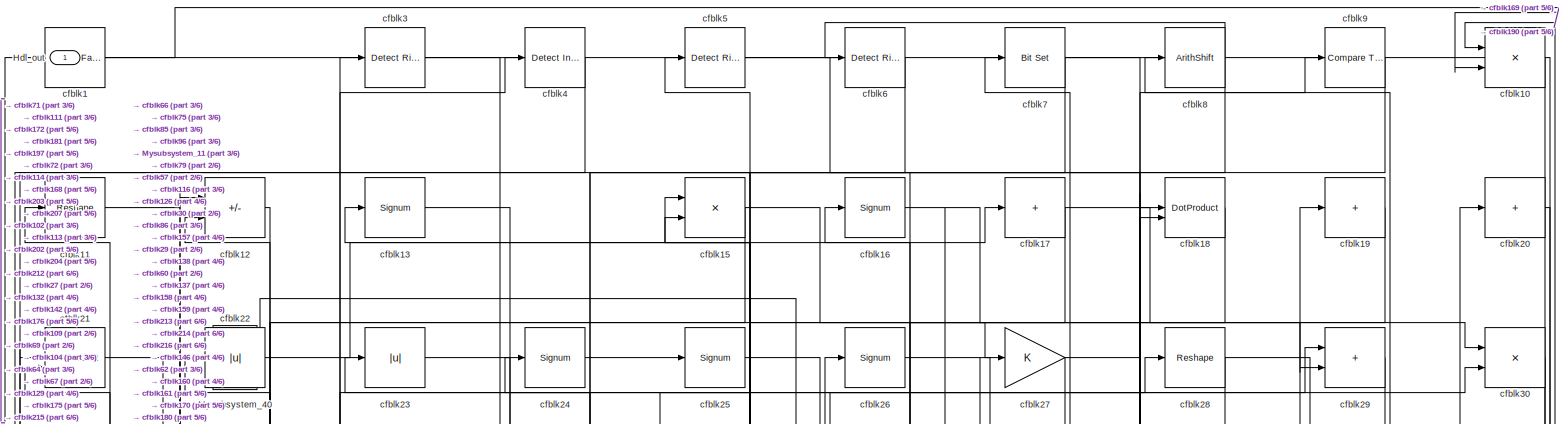
[diagram: root canvas - part 1/6, full width, top band]
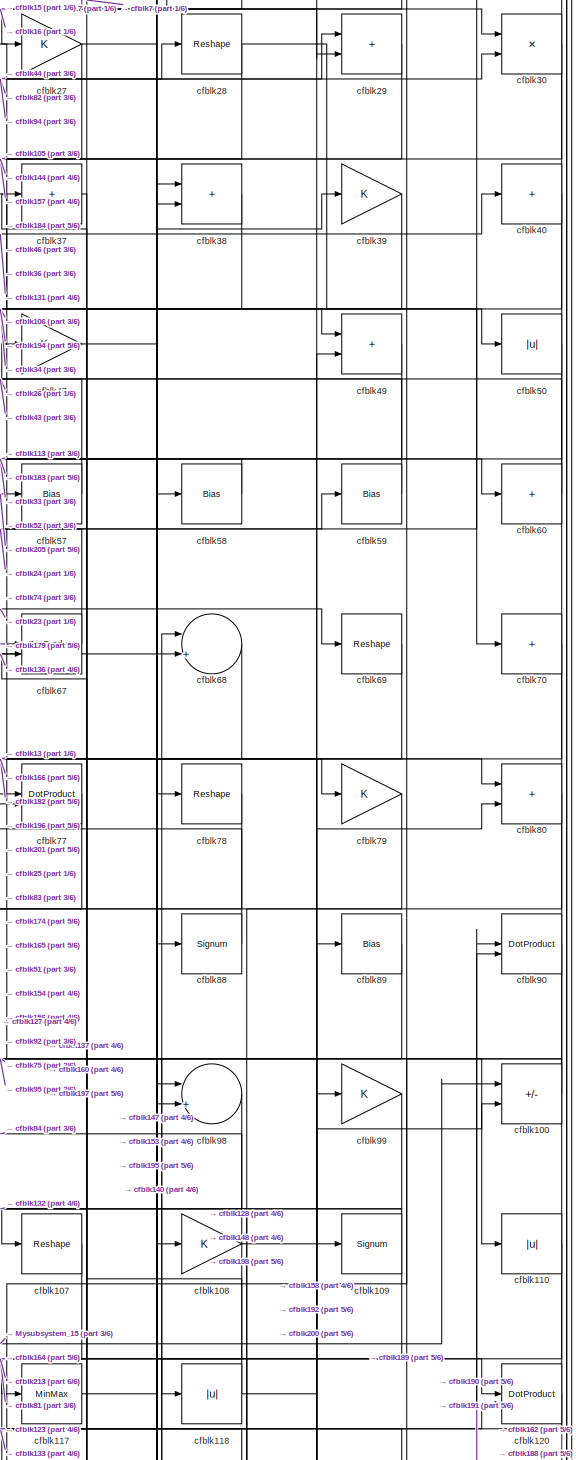
[diagram: root canvas - part 2/6, top right region]
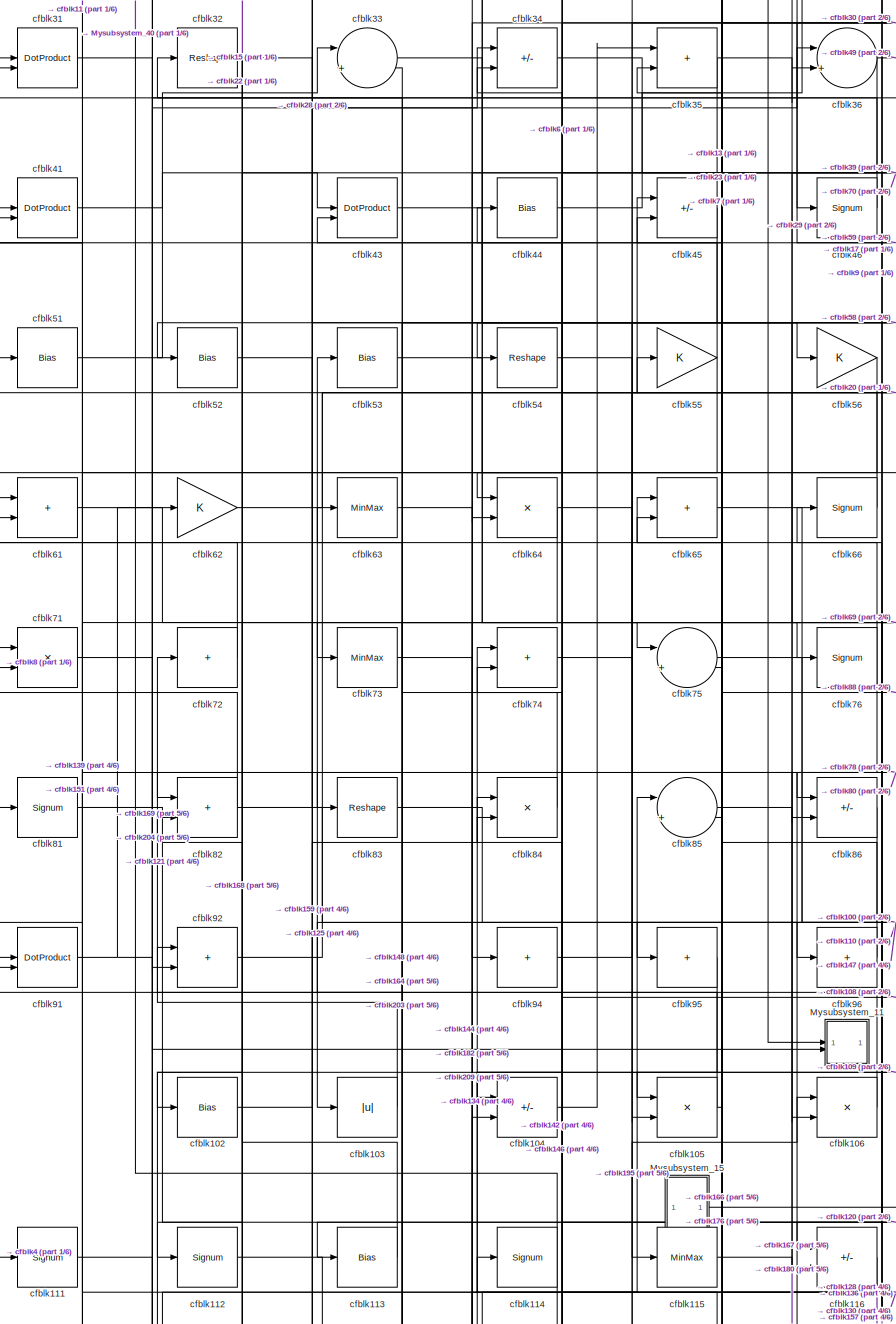
[diagram: root canvas - part 3/6, middle left region]
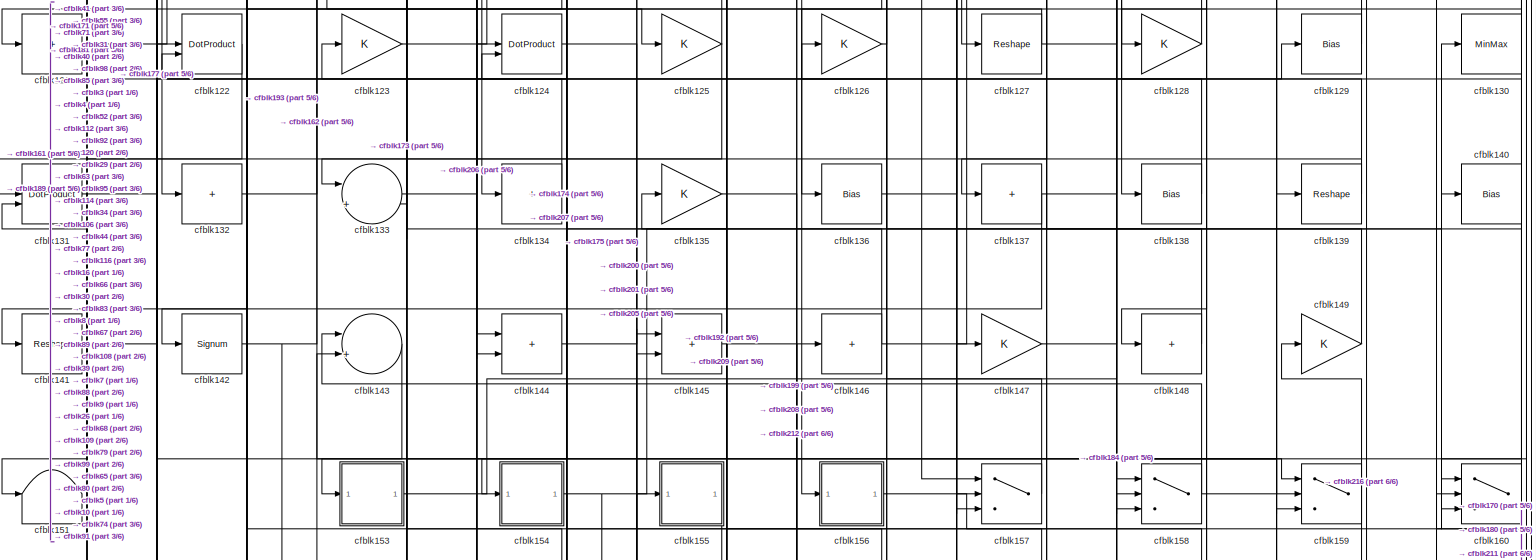
[diagram: root canvas - part 4/6, full width, middle band]
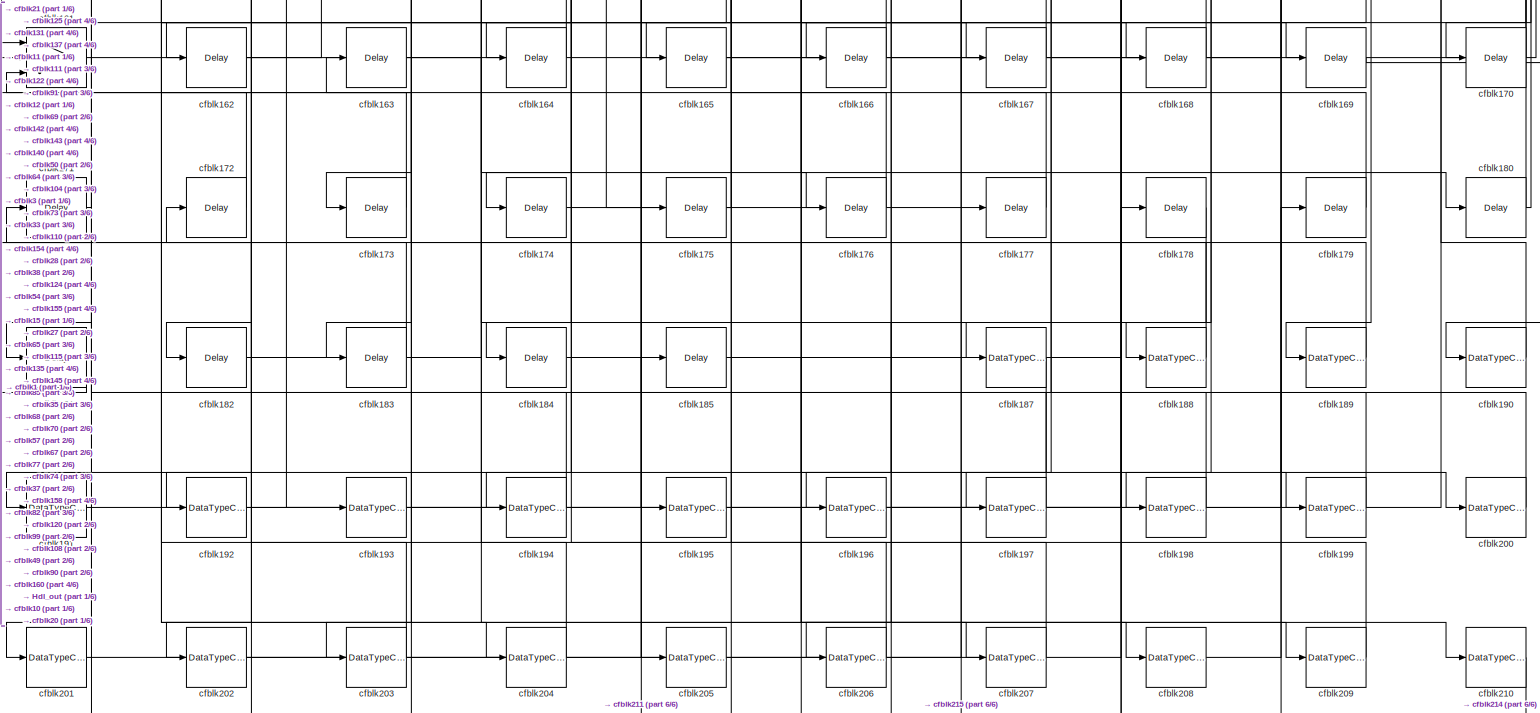
[diagram: root canvas - part 5/6, full width, bottom band]
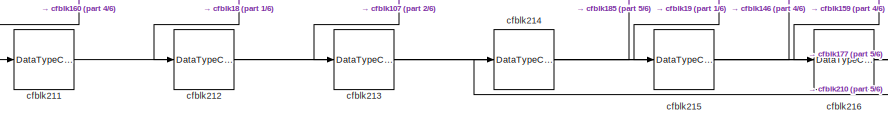
[diagram: root canvas - part 6/6, bottom left region]
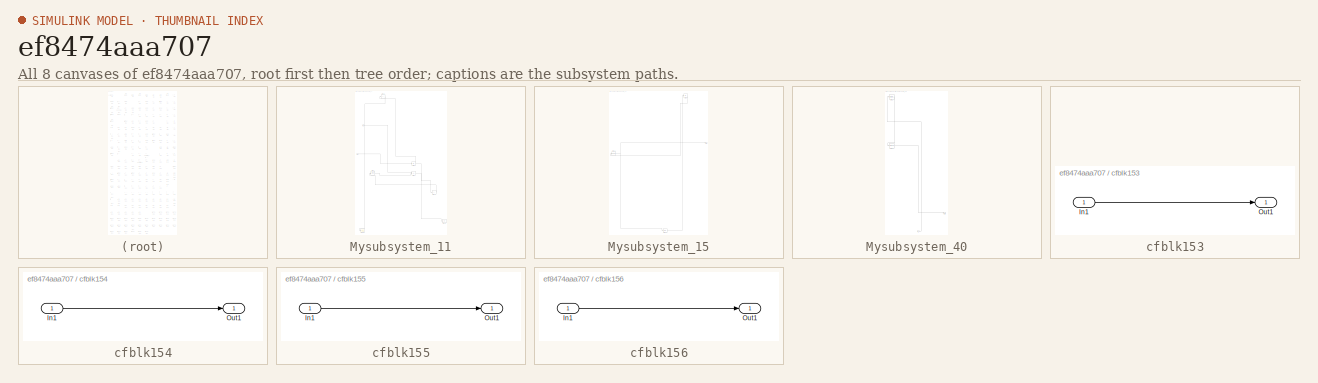
[diagram: thumbnail index - all 8 canvases of the model, root first then tree order]
MODEL slx_ef8474aaa707
KIND model
CONFIG AbsTol = auto
CONFIG EnableMultiTasking = off
CONFIG FixedStep = auto
CONFIG MaxStep = auto
CONFIG MinStep = auto
CONFIG RelTol = 1e-3
CONFIG SampleTimeConstraint = Unconstrained
CONFIG SolverName = VariableStepAuto
CONFIG StartTime = 0.0
CONFIG StopTime = 10.0
BLOCK [Outport] Hdl_out
  OutDataTypeStr = uint8
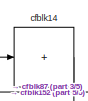
[diagram: Mysubsystem_11 - part 1/5, top left region]
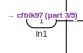
[diagram: Mysubsystem_11 - part 2/5, top left region]
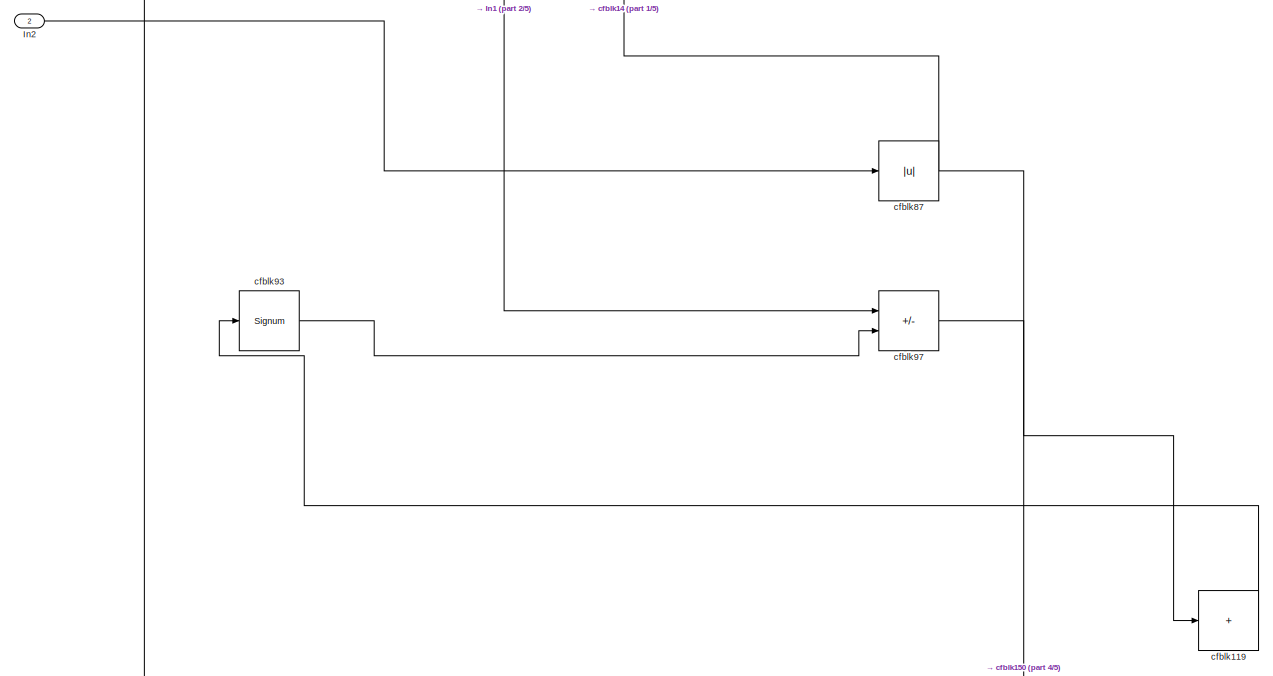
[diagram: Mysubsystem_11 - part 3/5, full width, middle band]
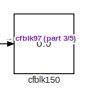
[diagram: Mysubsystem_11 - part 4/5, bottom right region]
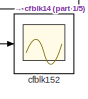
[diagram: Mysubsystem_11 - part 5/5, bottom left region]
BLOCK [SubSystem] Mysubsystem_11
  RTWFcnName = Mysubsystem_11
  RTWFcnNameOpts = User specified
  RTWFileNameOpts = Use function name
  RTWSystemCode = Reusable function
  TreatAsAtomicUnit = on
BLOCK [Inport] Mysubsystem_11/In1
BLOCK [Inport] Mysubsystem_11/In2
  Port = 2
BLOCK [Sum] Mysubsystem_11/cfblk119
  IconShape = rectangular
  Inputs = +
BLOCK [Sum] Mysubsystem_11/cfblk14
  IconShape = rectangular
  Inputs = +
BLOCK [Display] Mysubsystem_11/cfblk150
  Decimation = 1
BLOCK [Scope] Mysubsystem_11/cfblk152
  Floating = off
  NumInputPorts = 1
  ScopeSpecificationString = Simulink.scopes.TimeScopeBlockCfg('CurrentConfiguration', extmgr.ConfigurationSet(extmgr.Configuration('Core','General UI',true),extmgr.Configuration('Core','Source UI',true),extmgr.Configuration('Sources','WiredSimulink',true,'DataLoggingVariableName','ScopeData2','DataLoggingSaveFormat','Array','DataLoggingLimitDataPoints',true,'DataLoggingDecimation','1'),extmgr.Configuration('Visuals','Time Do...<+868ch>
BLOCK [Abs] Mysubsystem_11/cfblk87
  SaturateOnIntegerOverflow = off
BLOCK [Signum] Mysubsystem_11/cfblk93
BLOCK [Sum] Mysubsystem_11/cfblk97
  IconShape = rectangular
  Inputs = +-
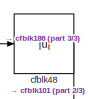
[diagram: Mysubsystem_15 - part 1/3, top right region]
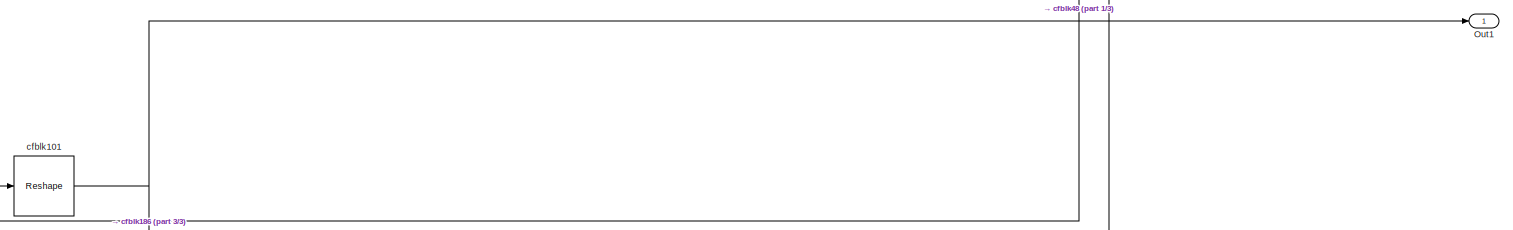
[diagram: Mysubsystem_15 - part 2/3, full width, middle band]
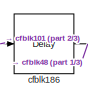
[diagram: Mysubsystem_15 - part 3/3, bottom center region]
BLOCK [SubSystem] Mysubsystem_15
  RTWFcnName = Mysubsystem_15
  RTWFcnNameOpts = User specified
  RTWFileNameOpts = Use function name
  RTWSystemCode = Reusable function
  TreatAsAtomicUnit = on
BLOCK [Outport] Mysubsystem_15/Out1
BLOCK [Reshape] Mysubsystem_15/cfblk101
BLOCK [Delay] Mysubsystem_15/cfblk186
  InputPortMap = u0
  SampleTime = 1
BLOCK [Abs] Mysubsystem_15/cfblk48
  SaturateOnIntegerOverflow = off
BLOCK [SubSystem] Mysubsystem_40
  RTWFcnName = Mysubsystem_40
  RTWFcnNameOpts = User specified
  RTWFileNameOpts = Use function name
  RTWSystemCode = Reusable function
  TreatAsAtomicUnit = on
BLOCK [Outport] Mysubsystem_40/Out1
BLOCK [Reference] Mysubsystem_40/cfblk2  REF=simulink/Logic and Bit
Operations/Extract Bits
  LibrarySourceBlock = hdlsllib/Logic and Bit\nOperations/Extract Bits
  SourceBlock = simulink/Logic and Bit\nOperations/Extract Bits
  SourceType = Extract Bits
BLOCK [Signum] Mysubsystem_40/cfblk42
BLOCK [Inport] Mysubsystem_40/u
BLOCK [Reference] cfblk1  REF=hdlsllib/Logic and Bit
Operations/Detect Fall
Negative
  SourceBlock = hdlsllib/Logic and Bit\nOperations/Detect Fall\nNegative
  SourceType = Detect Fall Negative
BLOCK [Product] cfblk10
  Inputs = */
  OutDataTypeStr = uint8
  RndMeth = Zero
  SaturateOnIntegerOverflow = on
BLOCK [Sum] cfblk100
  IconShape = rectangular
  Inputs = +-
  OutDataTypeStr = uint8
BLOCK [Bias] cfblk102
  Bias = 0.0
  SaturateOnIntegerOverflow = off
BLOCK [Abs] cfblk103
  OutDataTypeStr = uint8
  SaturateOnIntegerOverflow = off
BLOCK [Sum] cfblk104
  IconShape = rectangular
  Inputs = +-
  OutDataTypeStr = uint8
BLOCK [Product] cfblk105
  Inputs = */
  OutDataTypeStr = uint8
  RndMeth = Zero
  SaturateOnIntegerOverflow = on
BLOCK [Product] cfblk106
  Inputs = */
  OutDataTypeStr = uint8
  RndMeth = Zero
  SaturateOnIntegerOverflow = on
BLOCK [Reshape] cfblk107
BLOCK [Gain] cfblk108
  OutDataTypeStr = uint8
BLOCK [Signum] cfblk109
BLOCK [Reshape] cfblk11
BLOCK [Abs] cfblk110
  OutDataTypeStr = uint8
  SaturateOnIntegerOverflow = off
BLOCK [Signum] cfblk111
BLOCK [Signum] cfblk112
BLOCK [Bias] cfblk113
  Bias = 0.0
  SaturateOnIntegerOverflow = off
BLOCK [Signum] cfblk114
BLOCK [MinMax] cfblk115
  OutDataTypeStr = uint8
BLOCK [Sum] cfblk116
  IconShape = rectangular
  Inputs = +-
  OutDataTypeStr = uint8
BLOCK [MinMax] cfblk117
  OutDataTypeStr = uint8
BLOCK [Abs] cfblk118
  OutDataTypeStr = uint8
  SaturateOnIntegerOverflow = off
BLOCK [Sum] cfblk12
  IconShape = rectangular
  Inputs = +-
  OutDataTypeStr = uint8
BLOCK [DotProduct] cfblk120
  OutDataTypeStr = uint8
BLOCK [Sum] cfblk121
  IconShape = rectangular
  Inputs = +
  OutDataTypeStr = uint8
BLOCK [DotProduct] cfblk122
  OutDataTypeStr = uint8
BLOCK [Gain] cfblk123
  OutDataTypeStr = uint8
BLOCK [DotProduct] cfblk124
  OutDataTypeStr = uint8
BLOCK [Gain] cfblk125
  OutDataTypeStr = uint8
BLOCK [Gain] cfblk126
  OutDataTypeStr = uint8
BLOCK [Reshape] cfblk127
BLOCK [Gain] cfblk128
  OutDataTypeStr = uint8
BLOCK [Bias] cfblk129
  Bias = 0.0
  SaturateOnIntegerOverflow = off
BLOCK [Signum] cfblk13
BLOCK [MinMax] cfblk130
  OutDataTypeStr = uint8
BLOCK [DotProduct] cfblk131
  OutDataTypeStr = uint8
BLOCK [Sum] cfblk132
  IconShape = rectangular
  Inputs = +
  OutDataTypeStr = uint8
BLOCK [Sum] cfblk133
  Inputs = |++
  OutDataTypeStr = uint8
BLOCK [Sum] cfblk134
  IconShape = rectangular
  Inputs = +
  OutDataTypeStr = uint8
BLOCK [Gain] cfblk135
  OutDataTypeStr = uint8
BLOCK [Bias] cfblk136
  Bias = 0.0
  SaturateOnIntegerOverflow = off
BLOCK [Sum] cfblk137
  IconShape = rectangular
  Inputs = +
  OutDataTypeStr = uint8
BLOCK [Bias] cfblk138
  Bias = 0.0
  SaturateOnIntegerOverflow = off
BLOCK [Reshape] cfblk139
BLOCK [Bias] cfblk140
  Bias = 0.0
  SaturateOnIntegerOverflow = off
BLOCK [Reshape] cfblk141
BLOCK [Signum] cfblk142
BLOCK [Sum] cfblk143
  Inputs = |++
  OutDataTypeStr = uint8
BLOCK [Sum] cfblk144
  IconShape = rectangular
  OutDataTypeStr = uint8
BLOCK [Sum] cfblk145
  IconShape = rectangular
  OutDataTypeStr = uint8
BLOCK [Sum] cfblk146
  IconShape = rectangular
  Inputs = +
  OutDataTypeStr = uint8
BLOCK [Gain] cfblk147
  OutDataTypeStr = uint8
BLOCK [Sum] cfblk148
  IconShape = rectangular
  Inputs = +
  OutDataTypeStr = uint8
BLOCK [Gain] cfblk149
  OutDataTypeStr = uint8
BLOCK [Product] cfblk15
  Inputs = */
  OutDataTypeStr = uint8
  RndMeth = Zero
  SaturateOnIntegerOverflow = on
BLOCK [Terminator] cfblk151
BLOCK [SubSystem] cfblk153
  LibrarySourceBlock = hdlsllib/Ports &\nSubsystems/Subsystem
BLOCK [Inport] cfblk153/In1
BLOCK [Outport] cfblk153/Out1
BLOCK [SubSystem] cfblk154
  LibrarySourceBlock = hdlsllib/Ports &\nSubsystems/Subsystem
BLOCK [Inport] cfblk154/In1
BLOCK [Outport] cfblk154/Out1
BLOCK [SubSystem] cfblk155
  LibrarySourceBlock = hdlsllib/Ports &\nSubsystems/Subsystem
BLOCK [Inport] cfblk155/In1
BLOCK [Outport] cfblk155/Out1
BLOCK [SubSystem] cfblk156
  LibrarySourceBlock = hdlsllib/Ports &\nSubsystems/Subsystem
BLOCK [Inport] cfblk156/In1
BLOCK [Outport] cfblk156/Out1
BLOCK [Switch] cfblk157
  InputSameDT = off
  OutDataTypeStr = uint8
  SaturateOnIntegerOverflow = off
BLOCK [Switch] cfblk158
  InputSameDT = off
  OutDataTypeStr = uint8
  SaturateOnIntegerOverflow = off
BLOCK [Switch] cfblk159
  InputSameDT = off
  OutDataTypeStr = uint8
  SaturateOnIntegerOverflow = off
BLOCK [Signum] cfblk16
BLOCK [Switch] cfblk160
  InputSameDT = off
  OutDataTypeStr = uint8
  SaturateOnIntegerOverflow = off
BLOCK [Switch] cfblk161
  InputSameDT = off
  OutDataTypeStr = uint8
  SaturateOnIntegerOverflow = off
BLOCK [Delay] cfblk162
  InputPortMap = u0
  SampleTime = 1
BLOCK [Delay] cfblk163
  InputPortMap = u0
  SampleTime = 1
BLOCK [Delay] cfblk164
  InputPortMap = u0
  SampleTime = 1
BLOCK [Delay] cfblk165
  InputPortMap = u0
  SampleTime = 1
BLOCK [Delay] cfblk166
  InputPortMap = u0
  SampleTime = 1
BLOCK [Delay] cfblk167
  InputPortMap = u0
  SampleTime = 1
BLOCK [Delay] cfblk168
  InputPortMap = u0
  SampleTime = 1
BLOCK [Delay] cfblk169
  InputPortMap = u0
  SampleTime = 1
BLOCK [Sum] cfblk17
  IconShape = rectangular
  Inputs = +
  OutDataTypeStr = uint8
BLOCK [Delay] cfblk170
  InputPortMap = u0
  SampleTime = 1
BLOCK [Delay] cfblk171
  InputPortMap = u0
  SampleTime = 1
BLOCK [Delay] cfblk172
  InputPortMap = u0
  SampleTime = 1
BLOCK [Delay] cfblk173
  InputPortMap = u0
  SampleTime = 1
BLOCK [Delay] cfblk174
  InputPortMap = u0
  SampleTime = 1
BLOCK [Delay] cfblk175
  InputPortMap = u0
  SampleTime = 1
BLOCK [Delay] cfblk176
  InputPortMap = u0
  SampleTime = 1
BLOCK [Delay] cfblk177
  InputPortMap = u0
  SampleTime = 1
BLOCK [Delay] cfblk178
  InputPortMap = u0
  SampleTime = 1
BLOCK [Delay] cfblk179
  InputPortMap = u0
  SampleTime = 1
BLOCK [DotProduct] cfblk18
  OutDataTypeStr = uint8
BLOCK [Delay] cfblk180
  InputPortMap = u0
  SampleTime = 1
BLOCK [Delay] cfblk181
  InputPortMap = u0
  SampleTime = 1
BLOCK [Delay] cfblk182
  InputPortMap = u0
  SampleTime = 1
BLOCK [Delay] cfblk183
  InputPortMap = u0
  SampleTime = 1
BLOCK [Delay] cfblk184
  InputPortMap = u0
  SampleTime = 1
BLOCK [Delay] cfblk185
  InputPortMap = u0
  SampleTime = 1
BLOCK [DataTypeConversion] cfblk187
  OutDataTypeStr = uint8
  RndMeth = Floor
  SaturateOnIntegerOverflow = off
BLOCK [DataTypeConversion] cfblk188
  OutDataTypeStr = uint8
  RndMeth = Floor
  SaturateOnIntegerOverflow = off
BLOCK [DataTypeConversion] cfblk189
  OutDataTypeStr = uint8
  RndMeth = Floor
  SaturateOnIntegerOverflow = off
BLOCK [Sum] cfblk19
  IconShape = rectangular
  Inputs = +
  OutDataTypeStr = uint8
BLOCK [DataTypeConversion] cfblk190
  OutDataTypeStr = uint8
  RndMeth = Floor
  SaturateOnIntegerOverflow = off
BLOCK [DataTypeConversion] cfblk191
  OutDataTypeStr = uint8
  RndMeth = Floor
  SaturateOnIntegerOverflow = off
BLOCK [DataTypeConversion] cfblk192
  OutDataTypeStr = uint8
  RndMeth = Floor
  SaturateOnIntegerOverflow = off
BLOCK [DataTypeConversion] cfblk193
  OutDataTypeStr = uint8
  RndMeth = Floor
  SaturateOnIntegerOverflow = off
BLOCK [DataTypeConversion] cfblk194
  OutDataTypeStr = uint8
  RndMeth = Floor
  SaturateOnIntegerOverflow = off
BLOCK [DataTypeConversion] cfblk195
  OutDataTypeStr = uint8
  RndMeth = Floor
  SaturateOnIntegerOverflow = off
BLOCK [DataTypeConversion] cfblk196
  OutDataTypeStr = uint8
  RndMeth = Floor
  SaturateOnIntegerOverflow = off
BLOCK [DataTypeConversion] cfblk197
  OutDataTypeStr = uint8
  RndMeth = Floor
  SaturateOnIntegerOverflow = off
BLOCK [DataTypeConversion] cfblk198
  OutDataTypeStr = uint8
  RndMeth = Floor
  SaturateOnIntegerOverflow = off
BLOCK [DataTypeConversion] cfblk199
  OutDataTypeStr = uint8
  RndMeth = Floor
  SaturateOnIntegerOverflow = off
BLOCK [Sum] cfblk20
  IconShape = rectangular
  Inputs = +
  OutDataTypeStr = uint8
BLOCK [DataTypeConversion] cfblk200
  OutDataTypeStr = uint8
  RndMeth = Floor
  SaturateOnIntegerOverflow = off
BLOCK [DataTypeConversion] cfblk201
  OutDataTypeStr = uint8
  RndMeth = Floor
  SaturateOnIntegerOverflow = off
BLOCK [DataTypeConversion] cfblk202
  OutDataTypeStr = uint8
  RndMeth = Floor
  SaturateOnIntegerOverflow = off
BLOCK [DataTypeConversion] cfblk203
  OutDataTypeStr = uint8
  RndMeth = Floor
  SaturateOnIntegerOverflow = off
BLOCK [DataTypeConversion] cfblk204
  OutDataTypeStr = uint8
  RndMeth = Floor
  SaturateOnIntegerOverflow = off
BLOCK [DataTypeConversion] cfblk205
  OutDataTypeStr = uint8
  RndMeth = Floor
  SaturateOnIntegerOverflow = off
BLOCK [DataTypeConversion] cfblk206
  OutDataTypeStr = uint8
  RndMeth = Floor
  SaturateOnIntegerOverflow = off
BLOCK [DataTypeConversion] cfblk207
  OutDataTypeStr = uint8
  RndMeth = Floor
  SaturateOnIntegerOverflow = off
BLOCK [DataTypeConversion] cfblk208
  OutDataTypeStr = uint8
  RndMeth = Floor
  SaturateOnIntegerOverflow = off
BLOCK [DataTypeConversion] cfblk209
  OutDataTypeStr = uint8
  RndMeth = Floor
  SaturateOnIntegerOverflow = off
BLOCK [DotProduct] cfblk21
  OutDataTypeStr = uint8
BLOCK [DataTypeConversion] cfblk210
  OutDataTypeStr = uint8
  RndMeth = Floor
  SaturateOnIntegerOverflow = off
BLOCK [DataTypeConversion] cfblk211
  OutDataTypeStr = uint8
  RndMeth = Floor
  SaturateOnIntegerOverflow = off
BLOCK [DataTypeConversion] cfblk212
  OutDataTypeStr = uint8
  RndMeth = Floor
  SaturateOnIntegerOverflow = off
BLOCK [DataTypeConversion] cfblk213
  OutDataTypeStr = uint8
  RndMeth = Floor
  SaturateOnIntegerOverflow = off
BLOCK [DataTypeConversion] cfblk214
  OutDataTypeStr = uint8
  RndMeth = Floor
  SaturateOnIntegerOverflow = off
BLOCK [DataTypeConversion] cfblk215
  OutDataTypeStr = uint8
  RndMeth = Floor
  SaturateOnIntegerOverflow = off
BLOCK [DataTypeConversion] cfblk216
  OutDataTypeStr = uint8
  RndMeth = Floor
  SaturateOnIntegerOverflow = off
BLOCK [Abs] cfblk22
  OutDataTypeStr = uint8
  SaturateOnIntegerOverflow = off
BLOCK [Abs] cfblk23
  OutDataTypeStr = uint8
  SaturateOnIntegerOverflow = off
BLOCK [Signum] cfblk24
BLOCK [Signum] cfblk25
BLOCK [Signum] cfblk26
BLOCK [Gain] cfblk27
  OutDataTypeStr = uint8
BLOCK [Reshape] cfblk28
BLOCK [Sum] cfblk29
  IconShape = rectangular
  OutDataTypeStr = uint8
BLOCK [Reference] cfblk3  REF=hdlsllib/Logic and Bit
Operations/Detect Rise
Positive
  SourceBlock = hdlsllib/Logic and Bit\nOperations/Detect Rise\nPositive
  SourceType = Detect Rise Positive
BLOCK [Product] cfblk30
  Inputs = */
  OutDataTypeStr = uint8
  RndMeth = Zero
  SaturateOnIntegerOverflow = on
BLOCK [DotProduct] cfblk31
  OutDataTypeStr = uint8
BLOCK [Reshape] cfblk32
BLOCK [Sum] cfblk33
  Inputs = |++
  OutDataTypeStr = uint8
BLOCK [Sum] cfblk34
  IconShape = rectangular
  Inputs = +-
  OutDataTypeStr = uint8
BLOCK [Sum] cfblk35
  IconShape = rectangular
  OutDataTypeStr = uint8
BLOCK [Sum] cfblk36
  Inputs = |++
  OutDataTypeStr = uint8
BLOCK [Sum] cfblk37
  IconShape = rectangular
  Inputs = +
  OutDataTypeStr = uint8
BLOCK [Sum] cfblk38
  IconShape = rectangular
  OutDataTypeStr = uint8
BLOCK [Gain] cfblk39
  OutDataTypeStr = uint8
BLOCK [Reference] cfblk4  REF=simulink/Logic and Bit
Operations/Detect
Increase
  LibrarySourceBlock = hdlsllib/Logic and Bit\nOperations/Detect\nIncrease
  SourceBlock = simulink/Logic and Bit\nOperations/Detect\nIncrease
  SourceType = Detect Increase
BLOCK [Sum] cfblk40
  IconShape = rectangular
  Inputs = +
  OutDataTypeStr = uint8
BLOCK [DotProduct] cfblk41
  OutDataTypeStr = uint8
BLOCK [DotProduct] cfblk43
  OutDataTypeStr = uint8
BLOCK [Bias] cfblk44
  Bias = 0.0
  SaturateOnIntegerOverflow = off
BLOCK [Sum] cfblk45
  IconShape = rectangular
  Inputs = +-
  OutDataTypeStr = uint8
BLOCK [Signum] cfblk46
BLOCK [Gain] cfblk47
  OutDataTypeStr = uint8
BLOCK [Sum] cfblk49
  IconShape = rectangular
  OutDataTypeStr = uint8
BLOCK [Reference] cfblk5  REF=hdlsllib/Logic and Bit
Operations/Detect Rise
Nonnegative
  SourceBlock = hdlsllib/Logic and Bit\nOperations/Detect Rise\nNonnegative
  SourceType = Detect Rise Nonnegative
BLOCK [Abs] cfblk50
  OutDataTypeStr = uint8
  SaturateOnIntegerOverflow = off
BLOCK [Bias] cfblk51
  Bias = 0.0
  SaturateOnIntegerOverflow = off
BLOCK [Bias] cfblk52
  Bias = 0.0
  SaturateOnIntegerOverflow = off
BLOCK [Bias] cfblk53
  Bias = 0.0
  SaturateOnIntegerOverflow = off
BLOCK [Reshape] cfblk54
BLOCK [Gain] cfblk55
  OutDataTypeStr = uint8
BLOCK [Gain] cfblk56
  OutDataTypeStr = uint8
BLOCK [Bias] cfblk57
  Bias = 0.0
  SaturateOnIntegerOverflow = off
BLOCK [Bias] cfblk58
  Bias = 0.0
  SaturateOnIntegerOverflow = off
BLOCK [Bias] cfblk59
  Bias = 0.0
  SaturateOnIntegerOverflow = off
BLOCK [Reference] cfblk6  REF=hdlsllib/Logic and Bit
Operations/Detect Rise
Positive
  SourceBlock = hdlsllib/Logic and Bit\nOperations/Detect Rise\nPositive
  SourceType = Detect Rise Positive
BLOCK [Sum] cfblk60
  IconShape = rectangular
  Inputs = +
  OutDataTypeStr = uint8
BLOCK [Sum] cfblk61
  IconShape = rectangular
  OutDataTypeStr = uint8
BLOCK [Gain] cfblk62
  OutDataTypeStr = uint8
BLOCK [MinMax] cfblk63
  OutDataTypeStr = uint8
BLOCK [Product] cfblk64
  Inputs = */
  OutDataTypeStr = uint8
  RndMeth = Zero
  SaturateOnIntegerOverflow = on
BLOCK [Sum] cfblk65
  IconShape = rectangular
  OutDataTypeStr = uint8
BLOCK [Signum] cfblk66
BLOCK [DotProduct] cfblk67
  OutDataTypeStr = uint8
BLOCK [Sum] cfblk68
  Inputs = |++
  OutDataTypeStr = uint8
BLOCK [Reshape] cfblk69
BLOCK [Reference] cfblk7  REF=simulink/Logic and Bit
Operations/Bit Set
  LibrarySourceBlock = hdlsllib/Logic and Bit\nOperations/Bit Set
  SourceBlock = simulink/Logic and Bit\nOperations/Bit Set
  SourceType = Bit Set
BLOCK [Sum] cfblk70
  IconShape = rectangular
  Inputs = +
  OutDataTypeStr = uint8
BLOCK [Product] cfblk71
  Inputs = */
  OutDataTypeStr = uint8
  RndMeth = Zero
  SaturateOnIntegerOverflow = on
BLOCK [Sum] cfblk72
  IconShape = rectangular
  Inputs = +
  OutDataTypeStr = uint8
BLOCK [MinMax] cfblk73
  OutDataTypeStr = uint8
BLOCK [Sum] cfblk74
  IconShape = rectangular
  OutDataTypeStr = uint8
BLOCK [Sum] cfblk75
  Inputs = |++
  OutDataTypeStr = uint8
BLOCK [Signum] cfblk76
BLOCK [DotProduct] cfblk77
  OutDataTypeStr = uint8
BLOCK [Reshape] cfblk78
BLOCK [Gain] cfblk79
  OutDataTypeStr = uint8
BLOCK [ArithShift] cfblk8
  BitShiftNumber = 8
  InputPortMap = u0
BLOCK [Sum] cfblk80
  IconShape = rectangular
  OutDataTypeStr = uint8
BLOCK [Signum] cfblk81
BLOCK [Sum] cfblk82
  IconShape = rectangular
  OutDataTypeStr = uint8
BLOCK [Reshape] cfblk83
BLOCK [Product] cfblk84
  Inputs = */
  OutDataTypeStr = uint8
  RndMeth = Zero
  SaturateOnIntegerOverflow = on
BLOCK [Sum] cfblk85
  Inputs = |++
  OutDataTypeStr = uint8
BLOCK [Sum] cfblk86
  IconShape = rectangular
  Inputs = +-
  OutDataTypeStr = uint8
BLOCK [Signum] cfblk88
BLOCK [Bias] cfblk89
  Bias = 0.0
  SaturateOnIntegerOverflow = off
BLOCK [Reference] cfblk9  REF=hdlsllib/Logic and Bit
Operations/Compare
To Zero
  SourceBlock = hdlsllib/Logic and Bit\nOperations/Compare\nTo Zero
  SourceType = Compare To Zero
BLOCK [DotProduct] cfblk90
  OutDataTypeStr = uint8
BLOCK [DotProduct] cfblk91
  OutDataTypeStr = uint8
BLOCK [Sum] cfblk92
  IconShape = rectangular
  OutDataTypeStr = uint8
BLOCK [Sum] cfblk94
  IconShape = rectangular
  Inputs = +
  OutDataTypeStr = uint8
BLOCK [Sum] cfblk95
  IconShape = rectangular
  Inputs = +
  OutDataTypeStr = uint8
BLOCK [Sum] cfblk96
  IconShape = rectangular
  Inputs = +
  OutDataTypeStr = uint8
BLOCK [Sum] cfblk98
  Inputs = |++
  OutDataTypeStr = uint8
BLOCK [Gain] cfblk99
  OutDataTypeStr = uint8
LINE Mysubsystem_11/In1:1 -> Mysubsystem_11/cfblk97:1
LINE Mysubsystem_11/In2:1 -> Mysubsystem_11/cfblk87:1
LINE Mysubsystem_11/cfblk119:1 -> Mysubsystem_11/cfblk93:1
LINE Mysubsystem_11/cfblk14:1 -> Mysubsystem_11/cfblk152:1
NET Mysubsystem_11/cfblk87:1 -> Mysubsystem_11/cfblk119:1, Mysubsystem_11/cfblk14:1
LINE Mysubsystem_11/cfblk93:1 -> Mysubsystem_11/cfblk97:2
LINE Mysubsystem_11/cfblk97:1 -> Mysubsystem_11/cfblk150:1
NET Mysubsystem_15/cfblk101:1 -> Mysubsystem_15/Out1:1, Mysubsystem_15/cfblk186:1
LINE Mysubsystem_15/cfblk186:1 -> Mysubsystem_15/cfblk48:1
LINE Mysubsystem_15/cfblk48:1 -> Mysubsystem_15/cfblk101:1
LINE Mysubsystem_15:1 -> cfblk100:1
LINE Mysubsystem_40/cfblk2:1 -> Mysubsystem_40/cfblk42:1
LINE Mysubsystem_40/cfblk42:1 -> Mysubsystem_40/Out1:1
LINE Mysubsystem_40/u:1 -> Mysubsystem_40/cfblk2:1
LINE Mysubsystem_40:1 -> Mysubsystem_11:1
LINE cfblk100:1 -> cfblk95:1
LINE cfblk102:1 -> cfblk84:1
LINE cfblk103:1 -> cfblk72:1
LINE cfblk104:1 -> cfblk35:1
NET cfblk105:1 -> cfblk41:1, cfblk55:1, cfblk63:1
LINE cfblk106:1 -> cfblk53:1
LINE cfblk107:1 -> cfblk213:1
NET cfblk108:1 -> cfblk100:2, cfblk118:1, cfblk200:1, cfblk84:2
NET cfblk109:1 -> cfblk105:1, cfblk127:1, cfblk148:1
LINE cfblk10:1 -> cfblk160:1
LINE cfblk110:1 -> cfblk164:1
LINE cfblk111:1 -> cfblk204:1
LINE cfblk112:1 -> cfblk125:1
LINE cfblk113:1 -> cfblk22:1
NET cfblk114:1 -> Mysubsystem_40:1, cfblk142:1
LINE cfblk115:1 -> cfblk167:1
LINE cfblk116:1 -> cfblk136:1
LINE cfblk117:1 -> cfblk58:1
NET cfblk118:1 -> cfblk47:1, cfblk89:1
LINE cfblk11:1 -> cfblk168:1
NET cfblk120:1 -> cfblk162:1, cfblk188:1
LINE cfblk121:1 -> cfblk85:1
LINE cfblk122:1 -> cfblk141:1
LINE cfblk123:1 -> cfblk98:1
LINE cfblk124:1 -> cfblk205:1
NET cfblk125:1 -> cfblk161:2, cfblk44:1
LINE cfblk126:1 -> cfblk16:1
NET cfblk127:1 -> cfblk121:1, cfblk39:1
LINE cfblk128:1 -> cfblk114:1
LINE cfblk129:1 -> cfblk5:1
LINE cfblk12:1 -> cfblk202:1
NET cfblk130:1 -> cfblk74:1, cfblk91:2
LINE cfblk131:1 -> cfblk40:1
LINE cfblk132:1 -> cfblk3:1
LINE cfblk133:1 -> cfblk120:2
LINE cfblk134:1 -> cfblk123:1
LINE cfblk135:1 -> cfblk208:1
LINE cfblk136:1 -> cfblk68:2
NET cfblk137:1 -> cfblk181:1, cfblk9:1
LINE cfblk138:1 -> cfblk122:2
NET cfblk139:1 -> cfblk133:1, cfblk41:2, cfblk71:1
LINE cfblk13:1 -> cfblk109:1
NET cfblk140:1 -> cfblk173:1, cfblk68:1
LINE cfblk141:1 -> cfblk129:1
NET cfblk142:1 -> cfblk193:1, cfblk4:1
LINE cfblk143:1 -> cfblk153:1
LINE cfblk144:1 -> cfblk106:1
LINE cfblk145:1 -> cfblk199:1
NET cfblk146:1 -> cfblk34:1, cfblk8:1
LINE cfblk147:1 -> cfblk108:1
LINE cfblk148:1 -> cfblk92:1
LINE cfblk149:1 -> cfblk126:1
LINE cfblk153/In1:1 -> cfblk153/Out1:1
LINE cfblk153:1 -> cfblk88:1
LINE cfblk154/In1:1 -> cfblk154/Out1:1
NET cfblk154:1 -> cfblk140:1, cfblk174:1, cfblk175:1
LINE cfblk155/In1:1 -> cfblk155/Out1:1
LINE cfblk155:1 -> cfblk192:1
LINE cfblk156/In1:1 -> cfblk156/Out1:1
LINE cfblk156:1 -> cfblk130:1
LINE cfblk157:1 -> cfblk66:1
NET cfblk158:1 -> cfblk143:1, cfblk80:2
NET cfblk159:1 -> cfblk149:1, cfblk216:1
NET cfblk15:1 -> cfblk102:1, cfblk27:1
NET cfblk160:1 -> cfblk211:1, cfblk67:2
LINE cfblk161:1 -> cfblk10:1
LINE cfblk162:1 -> cfblk143:2
LINE cfblk163:1 -> cfblk187:1
LINE cfblk164:1 -> cfblk33:2
LINE cfblk165:1 -> cfblk49:2
LINE cfblk166:1 -> cfblk35:2
LINE cfblk167:1 -> cfblk74:2
LINE cfblk168:1 -> cfblk82:2
LINE cfblk169:1 -> cfblk10:2
NET cfblk16:1 -> cfblk157:1, cfblk29:2
LINE cfblk170:1 -> cfblk160:2
LINE cfblk171:1 -> cfblk131:2
LINE cfblk172:1 -> cfblk21:1
LINE cfblk173:1 -> cfblk161:3
LINE cfblk174:1 -> cfblk77:1
LINE cfblk175:1 -> cfblk15:2
LINE cfblk176:1 -> cfblk65:2
LINE cfblk177:1 -> cfblk122:1
LINE cfblk178:1 -> cfblk206:1
LINE cfblk179:1 -> cfblk67:1
NET cfblk17:1 -> cfblk30:1, cfblk86:1
NET cfblk180:1 -> Hdl_out:1, cfblk160:3
LINE cfblk181:1 -> cfblk1:1
LINE cfblk182:1 -> cfblk104:2
LINE cfblk183:1 -> cfblk161:1
LINE cfblk184:1 -> cfblk158:2
LINE cfblk185:1 -> cfblk210:1
LINE cfblk187:1 -> cfblk191:1
LINE cfblk188:1 -> cfblk163:1
LINE cfblk189:1 -> cfblk131:1
LINE cfblk18:1 -> cfblk212:1
LINE cfblk190:1 -> cfblk90:1
LINE cfblk191:1 -> cfblk90:2
LINE cfblk192:1 -> cfblk99:1
LINE cfblk193:1 -> cfblk155:1
LINE cfblk194:1 -> cfblk172:1
LINE cfblk195:1 -> cfblk38:1
LINE cfblk196:1 -> cfblk38:2
LINE cfblk197:1 -> cfblk21:2
LINE cfblk198:1 -> cfblk37:1
LINE cfblk199:1 -> cfblk171:1
LINE cfblk19:1 -> cfblk215:1
LINE cfblk1:1 -> cfblk190:1
LINE cfblk200:1 -> cfblk145:1
LINE cfblk201:1 -> cfblk145:2
LINE cfblk202:1 -> cfblk178:1
LINE cfblk203:1 -> cfblk12:1
LINE cfblk204:1 -> cfblk12:2
LINE cfblk205:1 -> cfblk57:1
LINE cfblk206:1 -> cfblk124:1
LINE cfblk207:1 -> cfblk124:2
LINE cfblk208:1 -> cfblk179:1
LINE cfblk209:1 -> cfblk135:1
LINE cfblk20:1 -> cfblk170:1
LINE cfblk210:1 -> cfblk214:1
LINE cfblk211:1 -> cfblk185:1
LINE cfblk212:1 -> cfblk146:1
LINE cfblk213:1 -> cfblk18:1
LINE cfblk214:1 -> cfblk18:2
LINE cfblk215:1 -> cfblk177:1
LINE cfblk216:1 -> cfblk19:1
LINE cfblk21:1 -> cfblk207:1
LINE cfblk22:1 -> cfblk17:1
LINE cfblk23:1 -> cfblk69:1
LINE cfblk24:1 -> cfblk25:1
LINE cfblk25:1 -> cfblk79:1
NET cfblk26:1 -> cfblk138:1, cfblk60:1
NET cfblk27:1 -> cfblk165:1, cfblk77:2, cfblk98:2
NET cfblk28:1 -> cfblk184:1, cfblk50:1
LINE cfblk29:1 -> cfblk144:2
NET cfblk30:1 -> cfblk105:2, cfblk157:3, cfblk46:1
LINE cfblk31:1 -> cfblk159:2
LINE cfblk32:1 -> cfblk56:1
LINE cfblk33:1 -> cfblk78:1
LINE cfblk34:1 -> cfblk70:1
NET cfblk35:1 -> cfblk112:1, cfblk36:2
NET cfblk36:1 -> cfblk49:1, cfblk64:2
LINE cfblk37:1 -> cfblk197:1
LINE cfblk38:1 -> cfblk194:1
LINE cfblk39:1 -> cfblk106:2
LINE cfblk3:1 -> cfblk176:1
NET cfblk40:1 -> cfblk107:1, cfblk158:3
LINE cfblk41:1 -> cfblk43:1
NET cfblk43:1 -> cfblk115:1, cfblk116:2
LINE cfblk44:1 -> cfblk29:1
LINE cfblk45:1 -> cfblk54:1
LINE cfblk46:1 -> cfblk31:1
NET cfblk47:1 -> cfblk117:1, cfblk80:1
LINE cfblk49:1 -> cfblk113:1
LINE cfblk4:1 -> cfblk111:1
LINE cfblk50:1 -> cfblk183:1
LINE cfblk51:1 -> cfblk33:1
LINE cfblk52:1 -> cfblk159:1
LINE cfblk53:1 -> cfblk75:1
LINE cfblk54:1 -> cfblk195:1
NET cfblk55:1 -> cfblk151:1, cfblk31:2
LINE cfblk56:1 -> cfblk81:1
LINE cfblk57:1 -> cfblk26:1
LINE cfblk58:1 -> cfblk52:1
LINE cfblk59:1 -> cfblk43:2
LINE cfblk5:1 -> cfblk158:1
LINE cfblk60:1 -> cfblk7:1
LINE cfblk61:1 -> cfblk94:1
NET cfblk62:1 -> cfblk20:1, cfblk34:2
LINE cfblk63:1 -> cfblk144:1
NET cfblk64:1 -> cfblk203:1, cfblk76:1
LINE cfblk65:1 -> cfblk139:1
LINE cfblk66:1 -> cfblk15:1
LINE cfblk67:1 -> cfblk24:1
LINE cfblk68:1 -> cfblk166:1
NET cfblk69:1 -> cfblk182:1, cfblk83:1
LINE cfblk6:1 -> cfblk104:1
NET cfblk70:1 -> cfblk196:1, cfblk201:1
NET cfblk71:1 -> Mysubsystem_11:2, cfblk36:1
LINE cfblk72:1 -> cfblk11:1
LINE cfblk73:1 -> cfblk209:1
NET cfblk74:1 -> cfblk59:1, cfblk86:2
LINE cfblk75:1 -> cfblk110:1
NET cfblk76:1 -> cfblk61:2, cfblk73:1, cfblk91:1
NET cfblk77:1 -> cfblk154:1, cfblk156:1
LINE cfblk78:1 -> cfblk82:1
LINE cfblk79:1 -> cfblk128:1
NET cfblk7:1 -> cfblk159:3, cfblk75:2
NET cfblk80:1 -> cfblk133:2, cfblk92:2
LINE cfblk81:1 -> cfblk120:1
NET cfblk82:1 -> cfblk28:1, cfblk61:1, cfblk96:1
LINE cfblk83:1 -> cfblk147:1
LINE cfblk84:1 -> cfblk32:1
NET cfblk85:1 -> cfblk180:1, cfblk65:1
LINE cfblk86:1 -> cfblk103:1
LINE cfblk88:1 -> cfblk51:1
LINE cfblk89:1 -> cfblk137:1
NET cfblk8:1 -> cfblk6:1, cfblk71:2
LINE cfblk90:1 -> cfblk189:1
NET cfblk91:1 -> cfblk169:1, cfblk62:1
LINE cfblk92:1 -> cfblk45:1
LINE cfblk94:1 -> cfblk30:2
LINE cfblk95:1 -> cfblk134:1
NET cfblk96:1 -> cfblk13:1, cfblk23:1, cfblk45:2
LINE cfblk98:1 -> cfblk132:1
NET cfblk99:1 -> cfblk157:2, cfblk198:1
NET cfblk9:1 -> cfblk116:1, cfblk64:1, cfblk85:2
note: NET lines group one-source signal fan-out (src -> all destinations, sorted); 1:1 wires keep LINE
